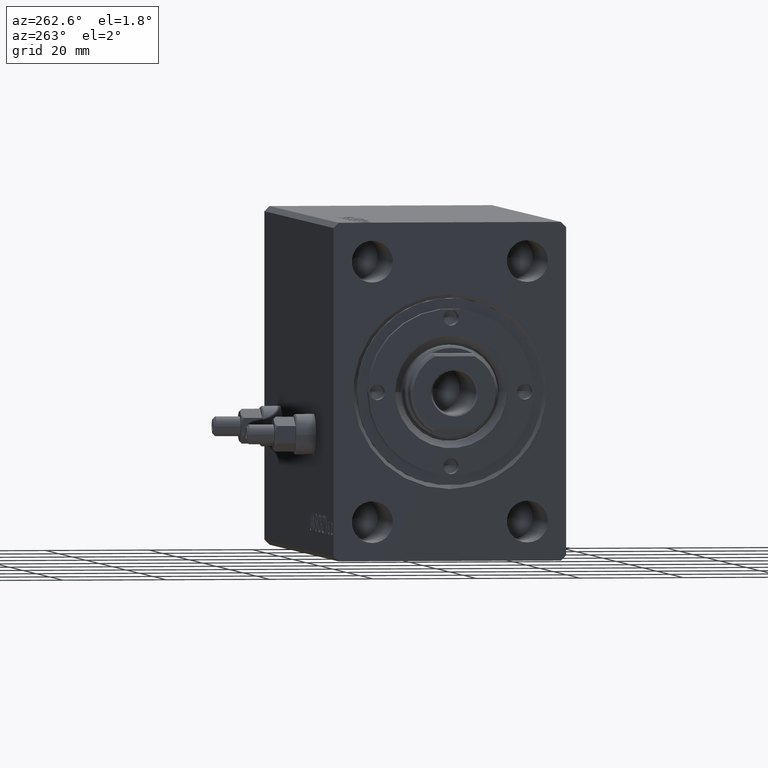
[diagram: clean part render]
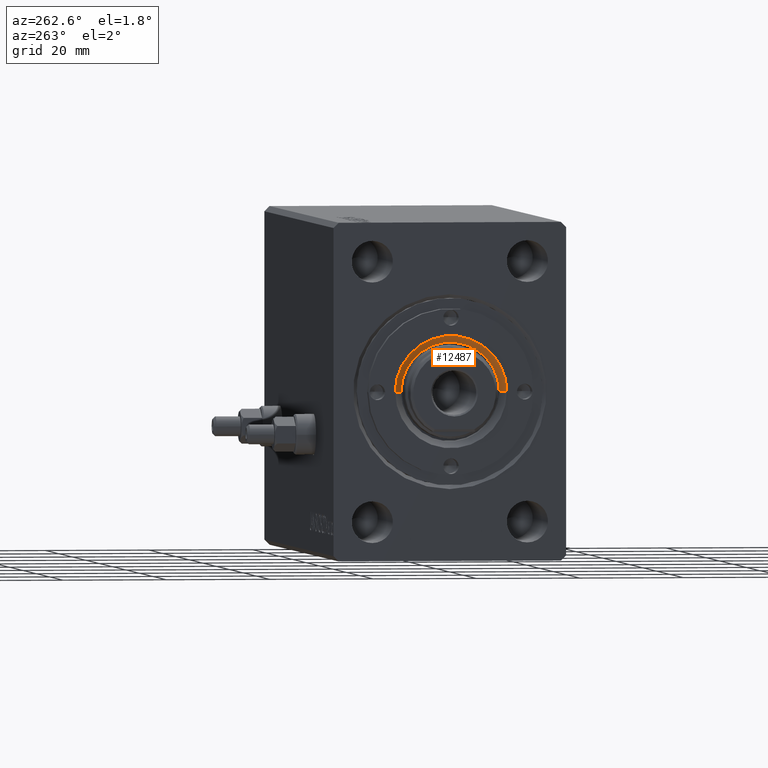
[diagram: same view with one face highlighted and labeled with its STEP entity id]
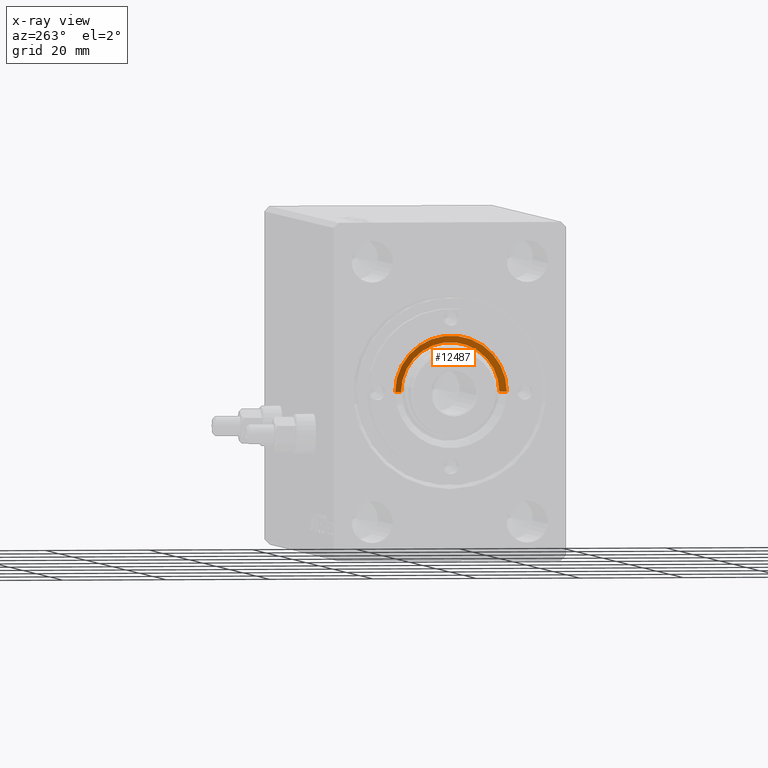
[diagram: x-ray of the same camera — body ghosted, the highlighted face saturated]
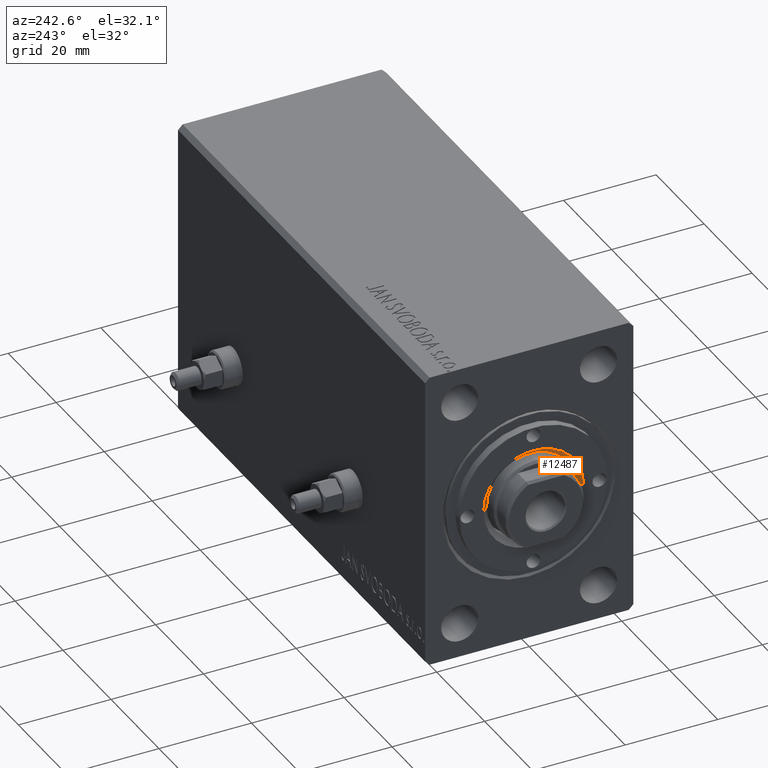
[diagram: same view with one face highlighted and labeled with its STEP entity id]
A machine part, auxiliary view. The second image highlights one B-rep face of the part: STEP entity #12487.
The next image is the same camera in x-ray: the body ghosted, the highlighted face saturated — about 0% of this face is hidden behind the body in this view.
A second angle (auxiliary view) of the same face is appended — the face is thin or edge-on in the first view.
In plain terms, the highlighted conical surface has half-angle 45 deg.
Its self-contained STEP definition (entity closure, byte-faithful):
#1646 = DIRECTION ( 'NONE',  ( 0.000000000000000000, 0.000000000000000000, 1.000000000000000000 ) ) ;
#1742 = CARTESIAN_POINT ( 'NONE',  ( 10.79999999999997584, 0.000000000000000000, 6.999999999999999112 ) ) ;
#2249 = DIRECTION ( 'NONE',  ( 0.7071067811865512365, 0.000000000000000000, 0.7071067811865439090 ) ) ;
#3969 = VERTEX_POINT ( 'NONE', #9016 ) ;
#3981 = CARTESIAN_POINT ( 'NONE',  ( -10.79999999999997584, 1.322618543079138535E-15, 6.999999999999999112 ) ) ;
#4366 = DIRECTION ( 'NONE',  ( 1.000000000000000000, 0.000000000000000000, 0.000000000000000000 ) ) ;
#4413 = ORIENTED_EDGE ( 'NONE', *, *, #42044, .F. ) ;
#7107 = CIRCLE ( 'NONE', #36311, 10.79999999999997584 ) ;
#7522 = VERTEX_POINT ( 'NONE', #1742 ) ;
#9016 = CARTESIAN_POINT ( 'NONE',  ( -9.500000000000000000, 1.163414459189985485E-15, 5.700000000000036593 ) ) ;
#9078 = CARTESIAN_POINT ( 'NONE',  ( 9.500000000000000000, 0.000000000000000000, 5.700000000000036593 ) ) ;
#9124 = LINE ( 'NONE', #23738, #21467 ) ;
#10545 = LINE ( 'NONE', #28123, #23304 ) ;
#12130 = EDGE_CURVE ( 'NONE', #3969, #28060, #10545, .T. ) ;
#12487 = ADVANCED_FACE ( 'NONE', ( #15130 ), #16763, .F. ) ;
#14140 = ORIENTED_EDGE ( 'NONE', *, *, #29911, .F. ) ;
#14688 = ORIENTED_EDGE ( 'NONE', *, *, #12130, .T. ) ;
#15130 = FACE_OUTER_BOUND ( 'NONE', #21545, .T. ) ;
#16271 = DIRECTION ( 'NONE',  ( -0.000000000000000000, -0.000000000000000000, -1.000000000000000000 ) ) ;
#16763 = CONICAL_SURFACE ( 'NONE', #42251, 8.999999999999957367, 0.7853981633974533860 ) ;
#20229 = ORIENTED_EDGE ( 'NONE', *, *, #44265, .F. ) ;
#21467 = VECTOR ( 'NONE', #2249, 1000.000000000000000 ) ;
#21545 = EDGE_LOOP ( 'NONE', ( #4413, #14688, #20229, #14140 ) ) ;
#22450 = DIRECTION ( 'NONE',  ( 1.000000000000000000, 0.000000000000000000, 0.000000000000000000 ) ) ;
#22674 = CARTESIAN_POINT ( 'NONE',  ( 0.000000000000000000, 0.000000000000000000, 5.700000000000036593 ) ) ;
#23109 = CARTESIAN_POINT ( 'NONE',  ( 0.000000000000000000, 0.000000000000000000, 6.999999999999999112 ) ) ;
#23304 = VECTOR ( 'NONE', #24468, 1000.000000000000000 ) ;
#23738 = CARTESIAN_POINT ( 'NONE',  ( 8.999999999999957367, 0.000000000000000000, 5.200000000000000178 ) ) ;
#24468 = DIRECTION ( 'NONE',  ( -0.7071067811865512365, 8.659560562354979697E-17, 0.7071067811865439090 ) ) ;
#28060 = VERTEX_POINT ( 'NONE', #3981 ) ;
#28123 = CARTESIAN_POINT ( 'NONE',  ( -8.999999999999957367, 1.102182119232612784E-15, 5.200000000000000178 ) ) ;
#28297 = AXIS2_PLACEMENT_3D ( 'NONE', #22674, #1646, #22450 ) ;
#29040 = DIRECTION ( 'NONE',  ( 0.000000000000000000, 0.000000000000000000, 1.000000000000000000 ) ) ;
#29739 = DIRECTION ( 'NONE',  ( 1.000000000000000000, 0.000000000000000000, 0.000000000000000000 ) ) ;
#29911 = EDGE_CURVE ( 'NONE', #30314, #7522, #9124, .T. ) ;
#30314 = VERTEX_POINT ( 'NONE', #9078 ) ;
#30499 = CIRCLE ( 'NONE', #28297, 9.500000000000000000 ) ;
#32701 = CARTESIAN_POINT ( 'NONE',  ( 0.000000000000000000, 0.000000000000000000, 5.200000000000000178 ) ) ;
#36311 = AXIS2_PLACEMENT_3D ( 'NONE', #23109, #16271, #29739 ) ;
#42044 = EDGE_CURVE ( 'NONE', #3969, #30314, #30499, .T. ) ;
#42251 = AXIS2_PLACEMENT_3D ( 'NONE', #32701, #29040, #4366 ) ;
#44265 = EDGE_CURVE ( 'NONE', #7522, #28060, #7107, .T. ) ;